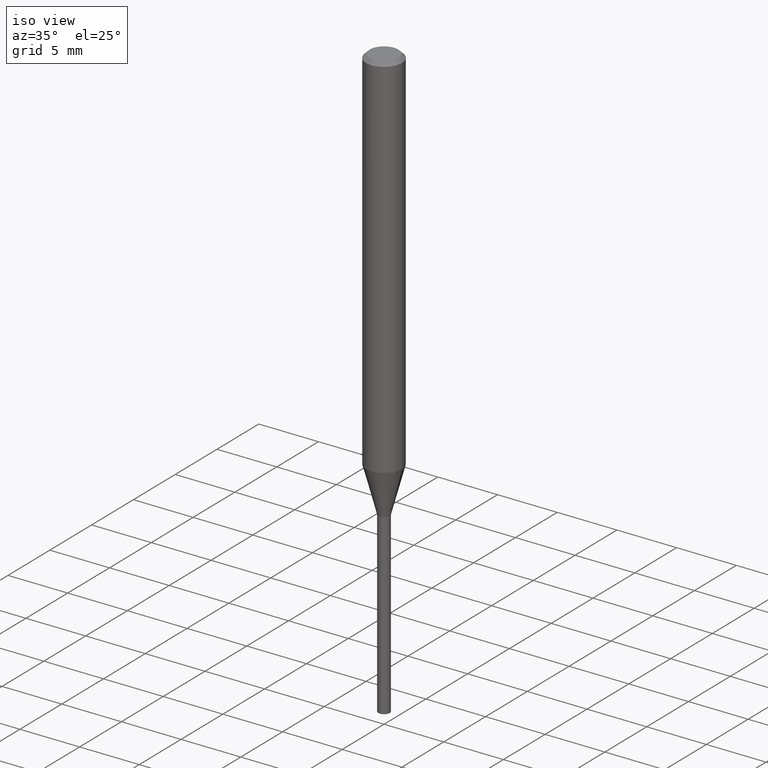
[diagram: clean part render]
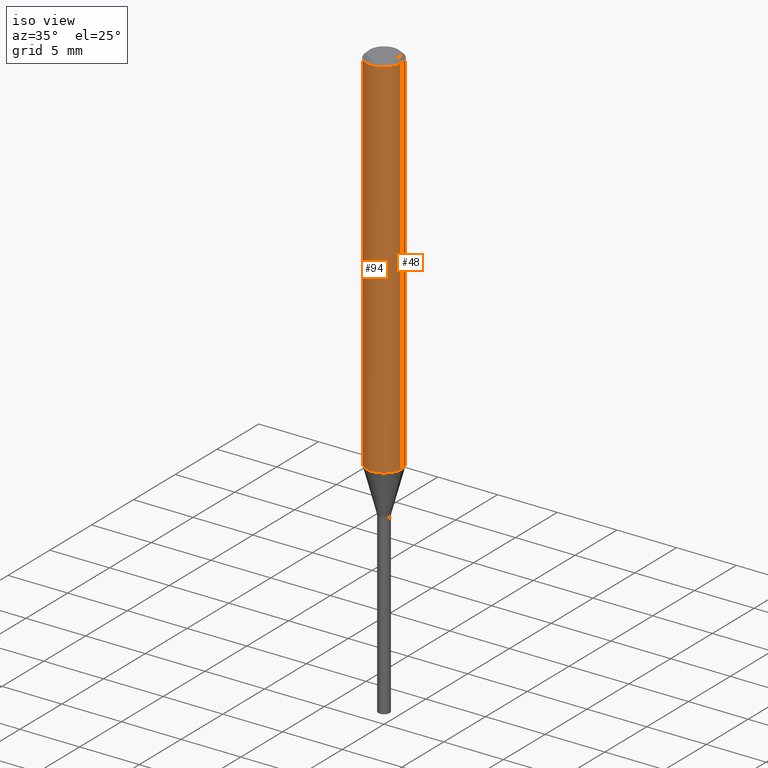
[diagram: same view with one multi-face feature highlighted, each face labeled with its STEP entity id]
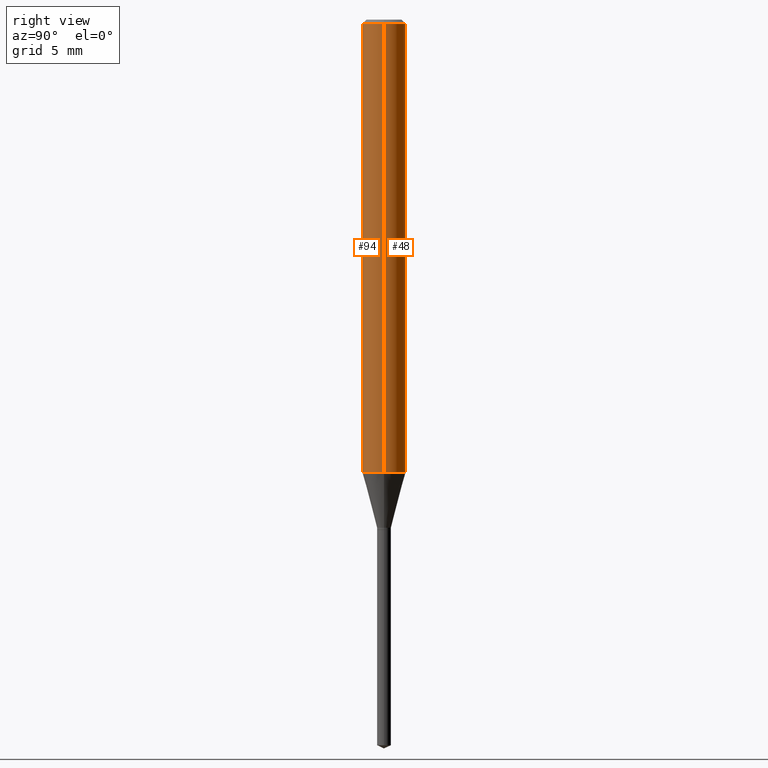
[diagram: same view with one multi-face feature highlighted, each face labeled with its STEP entity id]
A machine part, iso view. The highlighted faces form ONE feature: a constant-radius fillet chain: 2 tangent blend faces with common blend radius 1.4999 mm. The faces share edges in the B-rep.
A second angle (right view) of the same feature is appended — it is thin or edge-on in the first view.
Their STEP definitions:
[1] entity #48 (Cylinder):
#9 = CARTESIAN_POINT ( 'NONE',  ( -0.05905000000000000526, -1.734706470310346542E-15, -0.01181000000000007738 ) ) ;
#48 = ADVANCED_FACE ( 'NONE', ( #466 ), #271, .T. ) ;
#50 = DIRECTION ( 'NONE',  ( 1.000000000000000000, -6.982962677686267499E-15, 0.000000000000000000 ) ) ;
#54 = CARTESIAN_POINT ( 'NONE',  ( 0.05905000000000007465, -4.123439461173745750E-16, 2.879382386107504074E-30 ) ) ;
#66 = AXIS2_PLACEMENT_3D ( 'NONE', #126, #241, #124 ) ;
#77 = VERTEX_POINT ( 'NONE', #9 ) ;
#90 = CARTESIAN_POINT ( 'NONE',  ( 0.05905000000000000526, -4.535783407291119586E-16, -0.01181000000000007738 ) ) ;
#95 = DIRECTION ( 'NONE',  ( 1.000000000000000000, -6.982962677686272233E-15, 0.000000000000000000 ) ) ;
#102 = ORIENTED_EDGE ( 'NONE', *, *, #235, .T. ) ;
#115 = VERTEX_POINT ( 'NONE', #342 ) ;
#124 = DIRECTION ( 'NONE',  ( 1.000000000000000000, -6.982962677686266711E-15, 4.876176775795936353E-29 ) ) ;
#126 = CARTESIAN_POINT ( 'NONE',  ( 0.000000000000000000, 0.000000000000000000, 0.000000000000000000 ) ) ;
#133 = VERTEX_POINT ( 'NONE', #90 ) ;
#134 = EDGE_CURVE ( 'NONE', #133, #77, #161, .T. ) ;
#161 = CIRCLE ( 'NONE', #355, 0.05905000000000000526 ) ;
#174 = CARTESIAN_POINT ( 'NONE',  ( -0.05905000000000007465, 4.195754854663396902E-16, -2.904631170795525395E-30 ) ) ;
#184 = CARTESIAN_POINT ( 'NONE',  ( -0.05905000000000014404, -3.847754031475296427E-15, -1.222211749914595691 ) ) ;
#205 = CARTESIAN_POINT ( 'NONE',  ( 2.988880708969093313E-29, -4.267329516941636708E-15, -1.222211749914595691 ) ) ;
#219 = VECTOR ( 'NONE', #362, 39.37007874015748143 ) ;
#224 = ORIENTED_EDGE ( 'NONE', *, *, #304, .T. ) ;
#235 = EDGE_CURVE ( 'NONE', #115, #261, #305, .T. ) ;
#236 = CARTESIAN_POINT ( 'NONE',  ( 2.888098660104665518E-31, -4.123439461173782112E-17, -0.01181000000000007738 ) ) ;
#241 = DIRECTION ( 'NONE',  ( -2.445468806185136597E-29, 3.491481338843145583E-15, 1.000000000000000000 ) ) ;
#255 = DIRECTION ( 'NONE',  ( -2.445468806185136877E-29, 3.491481338843145188E-15, 1.000000000000000000 ) ) ;
#261 = VERTEX_POINT ( 'NONE', #184 ) ;
#271 = CYLINDRICAL_SURFACE ( 'NONE', #66, 0.05905000000000007465 ) ;
#304 = EDGE_CURVE ( 'NONE', #261, #77, #445, .T. ) ;
#305 = CIRCLE ( 'NONE', #486, 0.05905000000000014404 ) ;
#329 = EDGE_LOOP ( 'NONE', ( #102, #224, #429, #411 ) ) ;
#342 = CARTESIAN_POINT ( 'NONE',  ( 0.05905000000000014404, -4.679673463059010840E-15, -1.222211749914595691 ) ) ;
#343 = VECTOR ( 'NONE', #255, 39.37007874015748143 ) ;
#355 = AXIS2_PLACEMENT_3D ( 'NONE', #236, #388, #50 ) ;
#362 = DIRECTION ( 'NONE',  ( -2.445468806185136877E-29, 3.491481338843145188E-15, 1.000000000000000000 ) ) ;
#376 = EDGE_CURVE ( 'NONE', #115, #133, #435, .T. ) ;
#388 = DIRECTION ( 'NONE',  ( -2.445468806185136597E-29, 3.491481338843145583E-15, 1.000000000000000000 ) ) ;
#393 = DIRECTION ( 'NONE',  ( -2.445468806185136597E-29, 3.491481338843145583E-15, 1.000000000000000000 ) ) ;
#411 = ORIENTED_EDGE ( 'NONE', *, *, #376, .F. ) ;
#429 = ORIENTED_EDGE ( 'NONE', *, *, #134, .F. ) ;
#435 = LINE ( 'NONE', #54, #219 ) ;
#445 = LINE ( 'NONE', #174, #343 ) ;
#466 = FACE_OUTER_BOUND ( 'NONE', #329, .T. ) ;
#486 = AXIS2_PLACEMENT_3D ( 'NONE', #205, #393, #95 ) ;
[2] entity #94 (Cylinder):
#9 = CARTESIAN_POINT ( 'NONE',  ( -0.05905000000000000526, -1.734706470310346542E-15, -0.01181000000000007738 ) ) ;
#36 = AXIS2_PLACEMENT_3D ( 'NONE', #449, #413, #377 ) ;
#49 = CARTESIAN_POINT ( 'NONE',  ( 2.888098660104665518E-31, -4.123439461173782112E-17, -0.01181000000000007738 ) ) ;
#53 = DIRECTION ( 'NONE',  ( 1.000000000000000000, -6.982962677686266711E-15, 4.876176775795936353E-29 ) ) ;
#54 = CARTESIAN_POINT ( 'NONE',  ( 0.05905000000000007465, -4.123439461173745750E-16, 2.879382386107504074E-30 ) ) ;
#77 = VERTEX_POINT ( 'NONE', #9 ) ;
#90 = CARTESIAN_POINT ( 'NONE',  ( 0.05905000000000000526, -4.535783407291119586E-16, -0.01181000000000007738 ) ) ;
#94 = ADVANCED_FACE ( 'NONE', ( #427 ), #230, .T. ) ;
#115 = VERTEX_POINT ( 'NONE', #342 ) ;
#125 = EDGE_CURVE ( 'NONE', #77, #133, #294, .T. ) ;
#131 = DIRECTION ( 'NONE',  ( -2.445468806185136597E-29, 3.491481338843145583E-15, 1.000000000000000000 ) ) ;
#133 = VERTEX_POINT ( 'NONE', #90 ) ;
#143 = ORIENTED_EDGE ( 'NONE', *, *, #304, .F. ) ;
#167 = ORIENTED_EDGE ( 'NONE', *, *, #465, .T. ) ;
#174 = CARTESIAN_POINT ( 'NONE',  ( -0.05905000000000007465, 4.195754854663396902E-16, -2.904631170795525395E-30 ) ) ;
#184 = CARTESIAN_POINT ( 'NONE',  ( -0.05905000000000014404, -3.847754031475296427E-15, -1.222211749914595691 ) ) ;
#218 = AXIS2_PLACEMENT_3D ( 'NONE', #49, #462, #421 ) ;
#219 = VECTOR ( 'NONE', #362, 39.37007874015748143 ) ;
#230 = CYLINDRICAL_SURFACE ( 'NONE', #260, 0.05905000000000007465 ) ;
#233 = ORIENTED_EDGE ( 'NONE', *, *, #376, .T. ) ;
#255 = DIRECTION ( 'NONE',  ( -2.445468806185136877E-29, 3.491481338843145188E-15, 1.000000000000000000 ) ) ;
#260 = AXIS2_PLACEMENT_3D ( 'NONE', #312, #131, #53 ) ;
#261 = VERTEX_POINT ( 'NONE', #184 ) ;
#294 = CIRCLE ( 'NONE', #218, 0.05905000000000000526 ) ;
#295 = EDGE_LOOP ( 'NONE', ( #143, #167, #233, #473 ) ) ;
#304 = EDGE_CURVE ( 'NONE', #261, #77, #445, .T. ) ;
#312 = CARTESIAN_POINT ( 'NONE',  ( 0.000000000000000000, 0.000000000000000000, 0.000000000000000000 ) ) ;
#342 = CARTESIAN_POINT ( 'NONE',  ( 0.05905000000000014404, -4.679673463059010840E-15, -1.222211749914595691 ) ) ;
#343 = VECTOR ( 'NONE', #255, 39.37007874015748143 ) ;
#362 = DIRECTION ( 'NONE',  ( -2.445468806185136877E-29, 3.491481338843145188E-15, 1.000000000000000000 ) ) ;
#376 = EDGE_CURVE ( 'NONE', #115, #133, #435, .T. ) ;
#377 = DIRECTION ( 'NONE',  ( 1.000000000000000000, -6.982962677686272233E-15, 0.000000000000000000 ) ) ;
#413 = DIRECTION ( 'NONE',  ( -2.445468806185136597E-29, 3.491481338843145583E-15, 1.000000000000000000 ) ) ;
#421 = DIRECTION ( 'NONE',  ( 1.000000000000000000, -6.982962677686267499E-15, 0.000000000000000000 ) ) ;
#427 = FACE_OUTER_BOUND ( 'NONE', #295, .T. ) ;
#435 = LINE ( 'NONE', #54, #219 ) ;
#445 = LINE ( 'NONE', #174, #343 ) ;
#449 = CARTESIAN_POINT ( 'NONE',  ( 2.988880708969093313E-29, -4.267329516941636708E-15, -1.222211749914595691 ) ) ;
#462 = DIRECTION ( 'NONE',  ( -2.445468806185136597E-29, 3.491481338843145583E-15, 1.000000000000000000 ) ) ;
#465 = EDGE_CURVE ( 'NONE', #261, #115, #487, .T. ) ;
#473 = ORIENTED_EDGE ( 'NONE', *, *, #125, .F. ) ;
#487 = CIRCLE ( 'NONE', #36, 0.05905000000000014404 ) ;